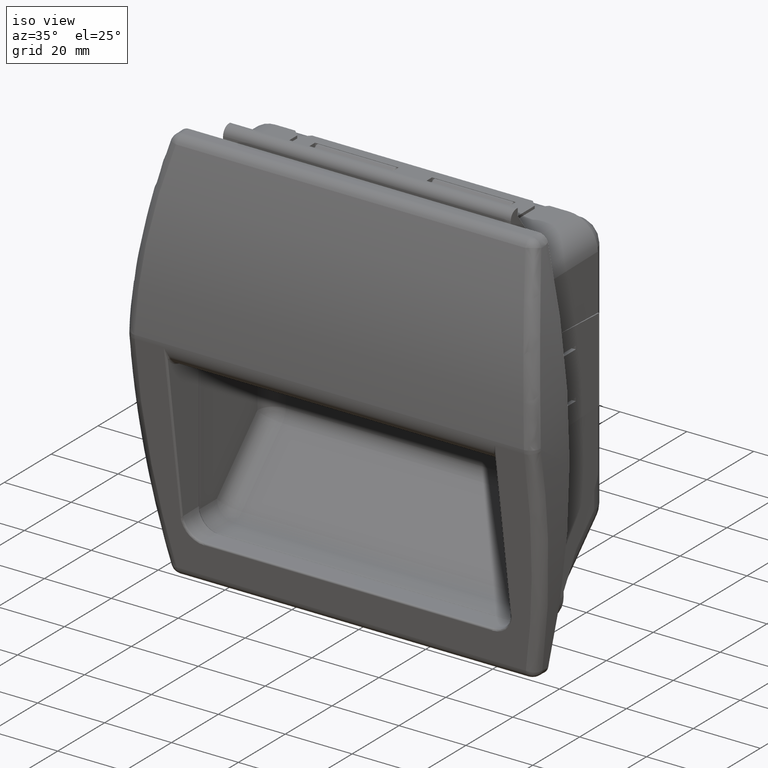
[diagram: clean part render]
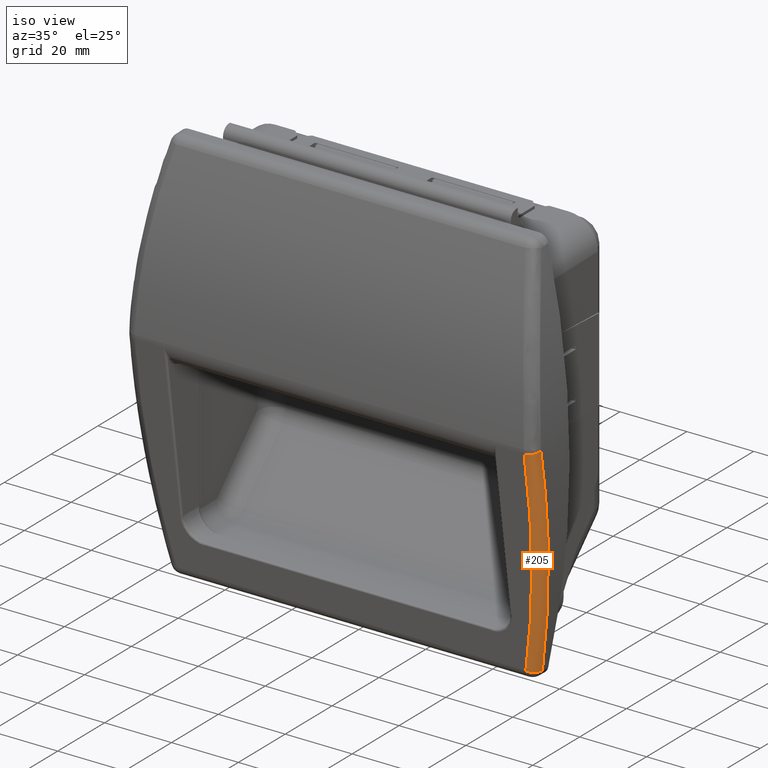
[diagram: same view with one face highlighted and labeled with its STEP entity id]
A machine part, iso view. The second image highlights one B-rep face of the part: STEP entity #205.
In plain terms, the highlighted face is a freeform B-spline surface patch.
Its self-contained STEP definition (entity closure, byte-faithful):
#205=ADVANCED_FACE('',(#1413),#1412,.T.);
#1412=( BOUNDED_SURFACE() B_SPLINE_SURFACE( 3,2,((#8544,#8545,#8546),(#8547,#8548,#8549),(#8550,#8551,#8552),(#8553,#8554,#8555),(#8556,#8557,#8558),(#8559,#8560,#8561)), .UNSPECIFIED.,.F.,.F.,.F.) B_SPLINE_SURFACE_WITH_KNOTS((4,2,4),(3,3),(4.68171397282E+00,4.80659004066E+00,4.93146610851E+00),(0.00000000000E+00,1.00000000000E+00), .UNSPECIFIED. ) GEOMETRIC_REPRESENTATION_ITEM() RATIONAL_B_SPLINE_SURFACE(((1.00000000000E+00,7.11753769147E-01,1.00000000000E+00),(1.00000000000E+00,7.13875469456E-01,1.00000000000E+00),(1.00000000000E+00,7.15990973406E-01,1.00000000000E+00),(1.00000000000E+00,7.20177570892E-01,1.00000000000E+00),(1.00000000000E+00,7.22248657853E-01,1.00000000000E+00),(1.00000000000E+00,7.24282149300E-01,1.00000000000E+00))) REPRESENTATION_ITEM('') SURFACE() );
#1413=FACE_OUTER_BOUND('',#8562,.T.);
#8544=CARTESIAN_POINT('',(-1.40290067175E+02,-1.47258334208E+01,6.78371685737E+00));
#8545=CARTESIAN_POINT('',(-1.37330733796E+02,-1.47388772192E+01,6.87260859535E+00));
#8546=CARTESIAN_POINT('',(-1.37291709493E+02,-1.18099763169E+01,7.30358718224E+00));
#8547=CARTESIAN_POINT('',(-1.39962180684E+02,-1.31578310961E+01,-3.90200884994E+00));
#8548=CARTESIAN_POINT('',(-1.37017958216E+02,-1.31578136809E+01,-3.90212753198E+00));
#8549=CARTESIAN_POINT('',(-1.36960312863E+02,-1.02419739818E+01,-3.50695592723E+00));
#8550=CARTESIAN_POINT('',(-1.40302354684E+02,-1.15868328785E+01,-1.46081511658E+01));
#8551=CARTESIAN_POINT('',(-1.37375828131E+02,-1.15692362197E+01,-1.47280700375E+01));
#8552=CARTESIAN_POINT('',(-1.37304781338E+02,-8.67097577459E+00,-1.43381138706E+01));
#8553=CARTESIAN_POINT('',(-1.42313527747E+02,-8.46326843150E+00,-3.58948242684E+01));
#8554=CARTESIAN_POINT('',(-1.39444159770E+02,-8.41149231337E+00,-3.62476715747E+01));
#8555=CARTESIAN_POINT('',(-1.39340070856E+02,-5.54741132758E+00,-3.58732725510E+01));
#8556=CARTESIAN_POINT('',(-1.43984515268E+02,-6.91072037239E+00,-4.64752312269E+01));
#8557=CARTESIAN_POINT('',(-1.41146982169E+02,-6.84204140350E+00,-4.69432691958E+01));
#8558=CARTESIAN_POINT('',(-1.41030880189E+02,-3.99486326375E+00,-4.65771479836E+01));
#8559=CARTESIAN_POINT('',(-1.46307917439E+02,-5.37947558005E+00,-5.69104592773E+01));
#8560=CARTESIAN_POINT('',(-1.43518843334E+02,-5.29027386934E+00,-5.75183569814E+01));
#8561=CARTESIAN_POINT('',(-1.43381706614E+02,-2.46361847613E+00,-5.71341126142E+01));
#8562=EDGE_LOOP('',(#16532,#16533,#16534,#16535));
#16532=ORIENTED_EDGE('',*,*,#20082,.F.);
#16533=ORIENTED_EDGE('',*,*,#20083,.T.);
#16534=ORIENTED_EDGE('',*,*,#20084,.T.);
#16535=ORIENTED_EDGE('',*,*,#20085,.T.);
#20082=EDGE_CURVE('',#23027,#23028,#23029,.T.);
#20083=EDGE_CURVE('',#23027,#23035,#23036,.T.);
#20084=EDGE_CURVE('',#23035,#23042,#23043,.T.);
#20085=EDGE_CURVE('',#23042,#23028,#23049,.T.);
#23027=VERTEX_POINT('',#34475);
#23028=VERTEX_POINT('',#34476);
#23029=CIRCLE('',#34480,3.00000000000E+00);
#23035=VERTEX_POINT('',#34481);
#23036=(BOUNDED_CURVE() B_SPLINE_CURVE(2,(#34482,#34483,#34484),.UNSPECIFIED.,.F.,.F.) B_SPLINE_CURVE_WITH_KNOTS((3,3),(-1.60147133436E+00,-1.35171919867E+00),.UNSPECIFIED.) CURVE() GEOMETRIC_REPRESENTATION_ITEM() RATIONAL_B_SPLINE_CURVE((1.00000000000E+00,9.92213110818E-01,1.00000000000E+00)) REPRESENTATION_ITEM('') );
#23042=VERTEX_POINT('',#34485);
#23043=CIRCLE('',#34489,3.00000000000E+00);
#23049=(BOUNDED_CURVE() B_SPLINE_CURVE(3,(#34490,#34491,#34492,#34493,#34494,#34495,#34496,#34497,#34498,#34499),.UNSPECIFIED.,.F.,.F.) B_SPLINE_CURVE_WITH_KNOTS((4,2,2,2,4),(0.00000000000E+00,1.64071931727E-02,2.46107897590E-02,3.28143863453E-02,6.56287726906E-02),.UNSPECIFIED.) CURVE() GEOMETRIC_REPRESENTATION_ITEM() RATIONAL_B_SPLINE_CURVE((1.00000000000E+00,1.00000000000E+00,1.00000000000E+00,1.00000000000E+00,1.00000000000E+00,1.00000000000E+00,1.00000000000E+00,1.00000000000E+00,1.00000000000E+00,1.00000000000E+00)) REPRESENTATION_ITEM('') );
#34475=CARTESIAN_POINT('',(-1.40290067175E+02,-1.47258334208E+01,6.78371685737E+00));
#34476=CARTESIAN_POINT('',(-1.37291709493E+02,-1.18099763169E+01,7.30358718224E+00));
#34477=CARTESIAN_POINT('',(-1.40290067175E+02,-1.17576190976E+01,7.21926677569E+00));
#34478=DIRECTION('',(-3.03454408879E-02,-1.45116444994E-01,9.88949124884E-01));
#34479=DIRECTION('',(4.31062593028E-12,9.89404774411E-01,1.45183306107E-01));
#34480=AXIS2_PLACEMENT_3D('',#34477,#34478,#34479);
#34481=CARTESIAN_POINT('',(-1.46307917439E+02,-5.37947558005E+00,-5.69104592773E+01));
#34482=CARTESIAN_POINT('',(-1.40290067175E+02,-1.47258334208E+01,6.78371685737E+00));
#34483=CARTESIAN_POINT('',(-1.39301264354E+02,-9.99723017459E+00,-2.54410805627E+01));
#34484=CARTESIAN_POINT('',(-1.46307917439E+02,-5.37947558005E+00,-5.69104592773E+01));
#34485=CARTESIAN_POINT('',(-1.43381706614E+02,-2.46361847613E+00,-5.71341126142E+01));
#34486=CARTESIAN_POINT('',(-1.46307917439E+02,-2.41126125681E+00,-5.64749093589E+01));
#34487=DIRECTION('',(2.15132696179E-01,-1.41783813782E-01,9.66237689797E-01));
#34488=DIRECTION('',(-7.57971962796E-14,9.89404774411E-01,1.45183306107E-01));
#34489=AXIS2_PLACEMENT_3D('',#34486,#34487,#34488);
#34490=CARTESIAN_POINT('',(-1.43381706614E+02,-2.46361847613E+00,-5.71341126142E+01));
#34491=CARTESIAN_POINT('',(-1.42204632691E+02,-3.23032259766E+00,-5.18481724702E+01));
#34492=CARTESIAN_POINT('',(-1.41193368072E+02,-4.00207410694E+00,-4.65274242404E+01));
#34493=CARTESIAN_POINT('',(-1.39927951016E+02,-5.16442595886E+00,-3.85137141085E+01));
#34494=CARTESIAN_POINT('',(-1.39547899068E+02,-5.55277547588E+00,-3.58362775972E+01));
#34495=CARTESIAN_POINT('',(-1.38871352774E+02,-6.33127337912E+00,-3.04689975284E+01));
#34496=CARTESIAN_POINT('',(-1.38574727569E+02,-6.72164844101E+00,-2.77775911732E+01));
#34497=CARTESIAN_POINT('',(-1.37303296093E+02,-8.67461116255E+00,-1.43130499351E+01));
#34498=CARTESIAN_POINT('',(-1.36960005769E+02,-1.02405209693E+01,-3.51697367696E+00));
#34499=CARTESIAN_POINT('',(-1.37291709493E+02,-1.18099763169E+01,7.30358718224E+00));